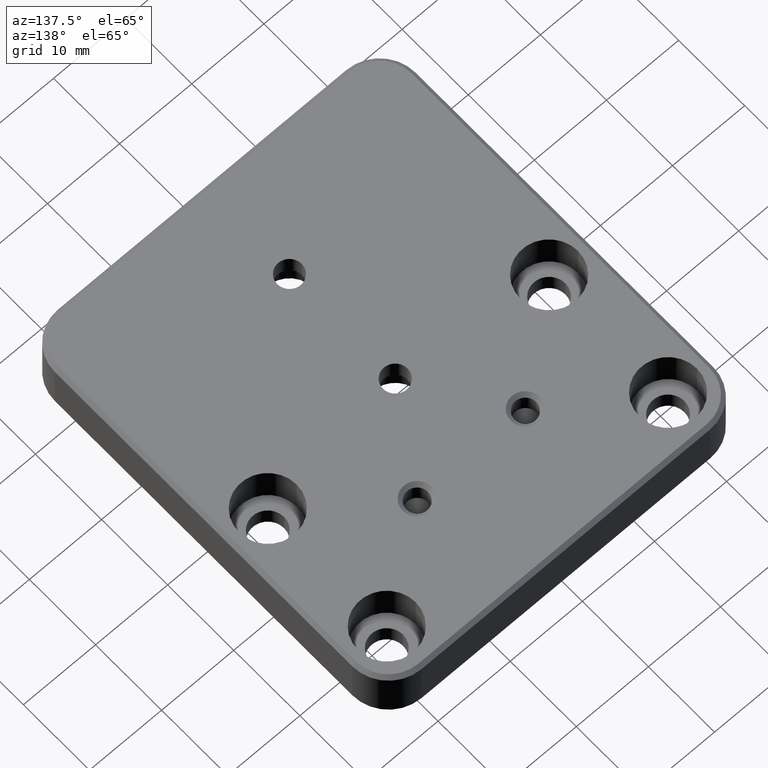
[diagram: clean part render]
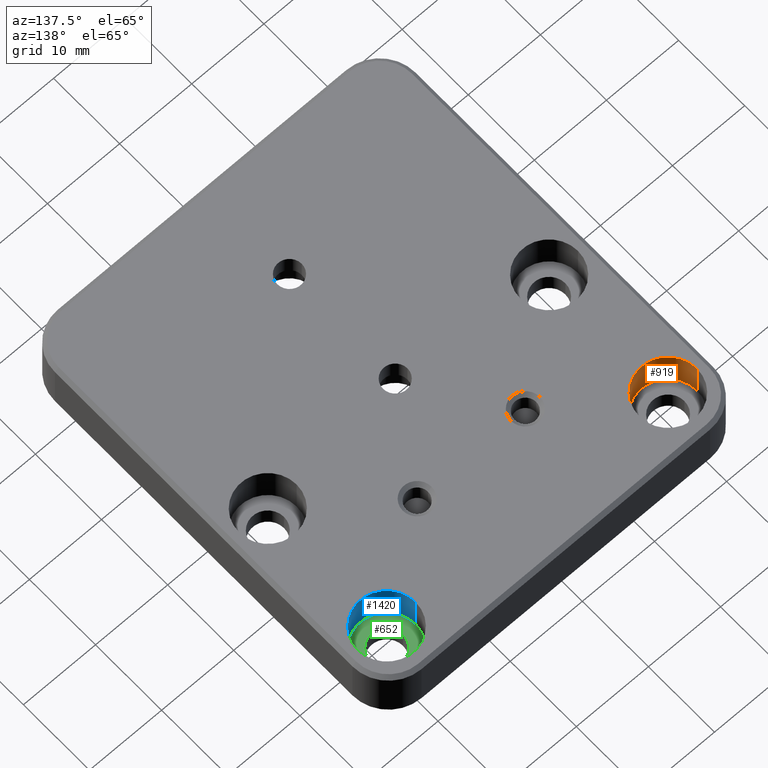
[diagram: same view with three faces highlighted in distinct colors, each labeled with its STEP entity id]
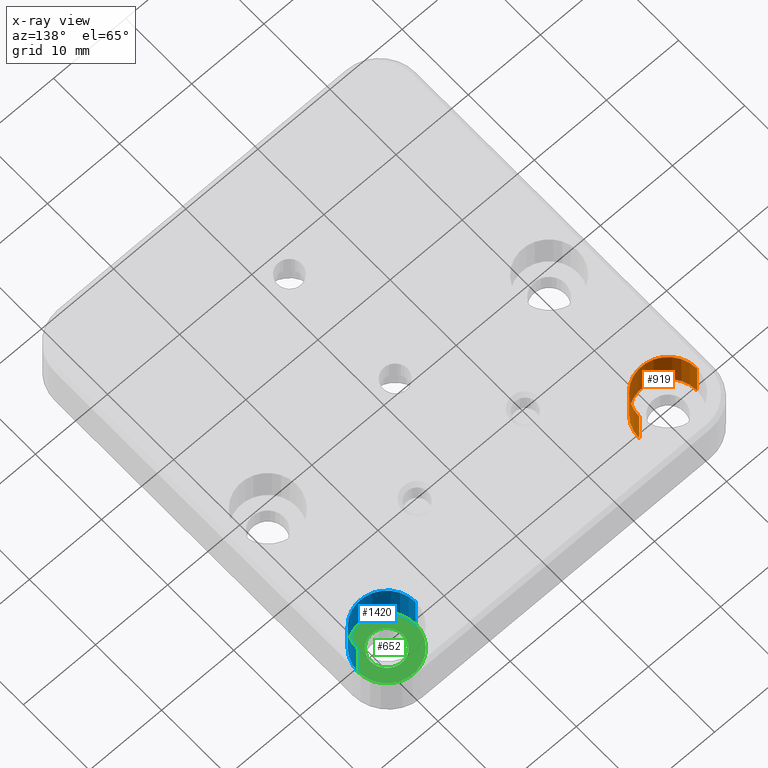
[diagram: x-ray of the same camera — body ghosted, the three highlighted faces saturated]
A machine part, auxiliary view with three faces highlighted in distinct colors.
The next image is the same camera in x-ray (body ghosted, the three faces saturated) — at least one of them is partly hidden behind the body in this view.
Their STEP definitions:

[orange] entity #919 — the highlighted cylindrical surface (partial cylindrical patch) has radius 4 mm, axis along (-0, -0, 1).
#76 = ORIENTED_EDGE ( 'NONE', *, *, #526, .F. ) ;
#85 = CIRCLE ( 'NONE', #198, 4.000000000000000000 ) ;
#88 = FACE_OUTER_BOUND ( 'NONE', #1088, .T. ) ;
#197 = CARTESIAN_POINT ( 'NONE',  ( -15.49999999999999645, 21.70000000000000639, 8.000000000000000000 ) ) ;
#198 = AXIS2_PLACEMENT_3D ( 'NONE', #1405, #2111, #232 ) ;
#232 = DIRECTION ( 'NONE',  ( 1.000000000000000000, 0.0000000000000000000, 0.0000000000000000000 ) ) ;
#526 = EDGE_CURVE ( 'NONE', #721, #1560, #1279, .T. ) ;
#572 = CARTESIAN_POINT ( 'NONE',  ( -23.49999999999999645, 21.70000000000000639, 8.000000000000000000 ) ) ;
#578 = DIRECTION ( 'NONE',  ( -0.0000000000000000000, -0.0000000000000000000, 1.000000000000000000 ) ) ;
#647 = VECTOR ( 'NONE', #1322, 1000.000000000000000 ) ;
#721 = VERTEX_POINT ( 'NONE', #1682 ) ;
#723 = CARTESIAN_POINT ( 'NONE',  ( -23.49999999999999645, 21.70000000000000639, 8.000000000000000000 ) ) ;
#740 = VERTEX_POINT ( 'NONE', #723 ) ;
#774 = DIRECTION ( 'NONE',  ( 1.000000000000000000, 0.0000000000000000000, 0.0000000000000000000 ) ) ;
#867 = CIRCLE ( 'NONE', #1978, 4.000000000000000000 ) ;
#910 = CARTESIAN_POINT ( 'NONE',  ( -19.49999999999999645, 21.70000000000000639, 2.700000000000000178 ) ) ;
#911 = VERTEX_POINT ( 'NONE', #1649 ) ;
#919 = ADVANCED_FACE ( 'NONE', ( #88 ), #1631, .F. ) ;
#1088 = EDGE_LOOP ( 'NONE', ( #1435, #1712, #1450, #76 ) ) ;
#1117 = DIRECTION ( 'NONE',  ( -0.0000000000000000000, -0.0000000000000000000, 1.000000000000000000 ) ) ;
#1279 = LINE ( 'NONE', #1302, #647 ) ;
#1302 = CARTESIAN_POINT ( 'NONE',  ( -15.49999999999999645, 21.70000000000000639, 8.000000000000000000 ) ) ;
#1322 = DIRECTION ( 'NONE',  ( -0.0000000000000000000, -0.0000000000000000000, 1.000000000000000000 ) ) ;
#1340 = EDGE_CURVE ( 'NONE', #911, #740, #2101, .T. ) ;
#1405 = CARTESIAN_POINT ( 'NONE',  ( -19.49999999999999645, 21.70000000000000639, 8.000000000000000000 ) ) ;
#1435 = ORIENTED_EDGE ( 'NONE', *, *, #2104, .F. ) ;
#1450 = ORIENTED_EDGE ( 'NONE', *, *, #1699, .T. ) ;
#1560 = VERTEX_POINT ( 'NONE', #197 ) ;
#1606 = DIRECTION ( 'NONE',  ( 1.000000000000000000, 0.0000000000000000000, 0.0000000000000000000 ) ) ;
#1631 = CYLINDRICAL_SURFACE ( 'NONE', #2038, 4.000000000000000000 ) ;
#1640 = CARTESIAN_POINT ( 'NONE',  ( -19.49999999999999645, 21.70000000000000639, 8.000000000000000000 ) ) ;
#1649 = CARTESIAN_POINT ( 'NONE',  ( -23.49999999999999645, 21.70000000000000639, 2.700000000000000178 ) ) ;
#1682 = CARTESIAN_POINT ( 'NONE',  ( -15.49999999999999645, 21.70000000000000639, 2.700000000000000178 ) ) ;
#1699 = EDGE_CURVE ( 'NONE', #740, #1560, #85, .T. ) ;
#1712 = ORIENTED_EDGE ( 'NONE', *, *, #1340, .T. ) ;
#1901 = VECTOR ( 'NONE', #1117, 1000.000000000000000 ) ;
#1978 = AXIS2_PLACEMENT_3D ( 'NONE', #910, #578, #1606 ) ;
#2038 = AXIS2_PLACEMENT_3D ( 'NONE', #1640, #2136, #774 ) ;
#2101 = LINE ( 'NONE', #572, #1901 ) ;
#2104 = EDGE_CURVE ( 'NONE', #911, #721, #867, .T. ) ;
#2111 = DIRECTION ( 'NONE',  ( -0.0000000000000000000, -0.0000000000000000000, 1.000000000000000000 ) ) ;
#2136 = DIRECTION ( 'NONE',  ( -0.0000000000000000000, -0.0000000000000000000, 1.000000000000000000 ) ) ;

[blue] entity #1420 — the highlighted cylindrical surface (partial cylindrical patch) has radius 4 mm, axis along (-0, -0, 1).
#117 = EDGE_CURVE ( 'NONE', #940, #1062, #1968, .T. ) ;
#133 = CARTESIAN_POINT ( 'NONE',  ( 23.49999999999999645, 21.70000000000000995, 8.000000000000000000 ) ) ;
#224 = AXIS2_PLACEMENT_3D ( 'NONE', #1427, #1774, #1588 ) ;
#334 = EDGE_CURVE ( 'NONE', #1062, #1554, #1787, .T. ) ;
#439 = DIRECTION ( 'NONE',  ( -0.0000000000000000000, -0.0000000000000000000, 1.000000000000000000 ) ) ;
#493 = CARTESIAN_POINT ( 'NONE',  ( 19.49999999999999645, 21.70000000000000995, 8.000000000000000000 ) ) ;
#519 = VERTEX_POINT ( 'NONE', #612 ) ;
#612 = CARTESIAN_POINT ( 'NONE',  ( 23.49999999999999645, 21.70000000000000995, 2.700000000000000178 ) ) ;
#687 = ORIENTED_EDGE ( 'NONE', *, *, #117, .T. ) ;
#813 = CARTESIAN_POINT ( 'NONE',  ( 19.49999999999999645, 21.70000000000000995, 2.700000000000000178 ) ) ;
#940 = VERTEX_POINT ( 'NONE', #973 ) ;
#973 = CARTESIAN_POINT ( 'NONE',  ( 15.49999999999999645, 21.70000000000000995, 2.700000000000000178 ) ) ;
#981 = CARTESIAN_POINT ( 'NONE',  ( 15.49999999999999645, 21.70000000000000995, 8.000000000000000000 ) ) ;
#1000 = DIRECTION ( 'NONE',  ( -0.0000000000000000000, -0.0000000000000000000, 1.000000000000000000 ) ) ;
#1021 = CARTESIAN_POINT ( 'NONE',  ( 15.49999999999999645, 21.70000000000000995, 8.000000000000000000 ) ) ;
#1048 = EDGE_CURVE ( 'NONE', #519, #1554, #1139, .T. ) ;
#1062 = VERTEX_POINT ( 'NONE', #1021 ) ;
#1139 = LINE ( 'NONE', #133, #1615 ) ;
#1194 = DIRECTION ( 'NONE',  ( -0.0000000000000000000, -0.0000000000000000000, 1.000000000000000000 ) ) ;
#1219 = ORIENTED_EDGE ( 'NONE', *, *, #1412, .F. ) ;
#1227 = CARTESIAN_POINT ( 'NONE',  ( 23.49999999999999645, 21.70000000000000995, 8.000000000000000000 ) ) ;
#1228 = EDGE_LOOP ( 'NONE', ( #1219, #687, #1345, #1616 ) ) ;
#1305 = DIRECTION ( 'NONE',  ( -0.0000000000000000000, -0.0000000000000000000, 1.000000000000000000 ) ) ;
#1339 = DIRECTION ( 'NONE',  ( 1.000000000000000000, 0.0000000000000000000, 0.0000000000000000000 ) ) ;
#1345 = ORIENTED_EDGE ( 'NONE', *, *, #334, .T. ) ;
#1362 = AXIS2_PLACEMENT_3D ( 'NONE', #493, #1000, #1820 ) ;
#1412 = EDGE_CURVE ( 'NONE', #940, #519, #1974, .T. ) ;
#1420 = ADVANCED_FACE ( 'NONE', ( #1846 ), #1855, .F. ) ;
#1427 = CARTESIAN_POINT ( 'NONE',  ( 19.49999999999999645, 21.70000000000000995, 8.000000000000000000 ) ) ;
#1500 = VECTOR ( 'NONE', #439, 1000.000000000000000 ) ;
#1554 = VERTEX_POINT ( 'NONE', #1227 ) ;
#1588 = DIRECTION ( 'NONE',  ( 1.000000000000000000, 0.0000000000000000000, 0.0000000000000000000 ) ) ;
#1615 = VECTOR ( 'NONE', #1194, 1000.000000000000000 ) ;
#1616 = ORIENTED_EDGE ( 'NONE', *, *, #1048, .F. ) ;
#1774 = DIRECTION ( 'NONE',  ( -0.0000000000000000000, -0.0000000000000000000, 1.000000000000000000 ) ) ;
#1787 = CIRCLE ( 'NONE', #224, 4.000000000000000000 ) ;
#1820 = DIRECTION ( 'NONE',  ( 1.000000000000000000, 0.0000000000000000000, 0.0000000000000000000 ) ) ;
#1846 = FACE_OUTER_BOUND ( 'NONE', #1228, .T. ) ;
#1855 = CYLINDRICAL_SURFACE ( 'NONE', #1362, 4.000000000000000000 ) ;
#1968 = LINE ( 'NONE', #981, #1500 ) ;
#1974 = CIRCLE ( 'NONE', #2181, 4.000000000000000000 ) ;
#2181 = AXIS2_PLACEMENT_3D ( 'NONE', #813, #1305, #1339 ) ;

[green] entity #652 — the highlighted planar face has unit normal (0, 0, -1).
#97 = EDGE_CURVE ( 'NONE', #1670, #326, #430, .T. ) ;
#135 = EDGE_CURVE ( 'NONE', #326, #1670, #1892, .T. ) ;
#167 = DIRECTION ( 'NONE',  ( 0.0000000000000000000, 0.0000000000000000000, -1.000000000000000000 ) ) ;
#266 = DIRECTION ( 'NONE',  ( -0.0000000000000000000, -0.0000000000000000000, 1.000000000000000000 ) ) ;
#326 = VERTEX_POINT ( 'NONE', #1573 ) ;
#337 = FACE_OUTER_BOUND ( 'NONE', #817, .T. ) ;
#430 = CIRCLE ( 'NONE', #608, 2.249999999999998668 ) ;
#519 = VERTEX_POINT ( 'NONE', #612 ) ;
#608 = AXIS2_PLACEMENT_3D ( 'NONE', #1296, #1511, #1983 ) ;
#612 = CARTESIAN_POINT ( 'NONE',  ( 23.49999999999999645, 21.70000000000000995, 2.700000000000000178 ) ) ;
#652 = ADVANCED_FACE ( 'NONE', ( #2027, #337 ), #1883, .F. ) ;
#670 = EDGE_LOOP ( 'NONE', ( #2103, #1004 ) ) ;
#746 = ORIENTED_EDGE ( 'NONE', *, *, #1412, .T. ) ;
#813 = CARTESIAN_POINT ( 'NONE',  ( 19.49999999999999645, 21.70000000000000995, 2.700000000000000178 ) ) ;
#817 = EDGE_LOOP ( 'NONE', ( #1059, #746 ) ) ;
#940 = VERTEX_POINT ( 'NONE', #973 ) ;
#973 = CARTESIAN_POINT ( 'NONE',  ( 15.49999999999999645, 21.70000000000000995, 2.700000000000000178 ) ) ;
#1004 = ORIENTED_EDGE ( 'NONE', *, *, #97, .F. ) ;
#1059 = ORIENTED_EDGE ( 'NONE', *, *, #1214, .T. ) ;
#1068 = DIRECTION ( 'NONE',  ( 1.000000000000000000, 0.0000000000000000000, 0.0000000000000000000 ) ) ;
#1137 = AXIS2_PLACEMENT_3D ( 'NONE', #1834, #1327, #1665 ) ;
#1181 = CIRCLE ( 'NONE', #2116, 4.000000000000000000 ) ;
#1214 = EDGE_CURVE ( 'NONE', #519, #940, #1181, .T. ) ;
#1250 = AXIS2_PLACEMENT_3D ( 'NONE', #2061, #167, #1518 ) ;
#1296 = CARTESIAN_POINT ( 'NONE',  ( 19.49999999999999645, 21.70000000000000995, 2.700000000000000178 ) ) ;
#1305 = DIRECTION ( 'NONE',  ( -0.0000000000000000000, -0.0000000000000000000, 1.000000000000000000 ) ) ;
#1327 = DIRECTION ( 'NONE',  ( -0.0000000000000000000, -0.0000000000000000000, 1.000000000000000000 ) ) ;
#1339 = DIRECTION ( 'NONE',  ( 1.000000000000000000, 0.0000000000000000000, 0.0000000000000000000 ) ) ;
#1412 = EDGE_CURVE ( 'NONE', #940, #519, #1974, .T. ) ;
#1511 = DIRECTION ( 'NONE',  ( -0.0000000000000000000, -0.0000000000000000000, 1.000000000000000000 ) ) ;
#1518 = DIRECTION ( 'NONE',  ( -1.000000000000000000, 0.0000000000000000000, -0.0000000000000000000 ) ) ;
#1573 = CARTESIAN_POINT ( 'NONE',  ( 21.74999999999999645, 21.70000000000000995, 2.700000000000000178 ) ) ;
#1592 = CARTESIAN_POINT ( 'NONE',  ( 19.49999999999999645, 21.70000000000000995, 2.700000000000000178 ) ) ;
#1665 = DIRECTION ( 'NONE',  ( 1.000000000000000000, 0.0000000000000000000, 0.0000000000000000000 ) ) ;
#1670 = VERTEX_POINT ( 'NONE', #1775 ) ;
#1775 = CARTESIAN_POINT ( 'NONE',  ( 17.24999999999999645, 21.70000000000000995, 2.700000000000000178 ) ) ;
#1834 = CARTESIAN_POINT ( 'NONE',  ( 19.49999999999999645, 21.70000000000000995, 2.700000000000000178 ) ) ;
#1883 = PLANE ( 'NONE',  #1250 ) ;
#1892 = CIRCLE ( 'NONE', #1137, 2.249999999999998668 ) ;
#1974 = CIRCLE ( 'NONE', #2181, 4.000000000000000000 ) ;
#1983 = DIRECTION ( 'NONE',  ( 1.000000000000000000, 0.0000000000000000000, 0.0000000000000000000 ) ) ;
#2027 = FACE_BOUND ( 'NONE', #670, .T. ) ;
#2061 = CARTESIAN_POINT ( 'NONE',  ( 21.74999999999999645, 21.70000000000000995, 2.700000000000000178 ) ) ;
#2103 = ORIENTED_EDGE ( 'NONE', *, *, #135, .F. ) ;
#2116 = AXIS2_PLACEMENT_3D ( 'NONE', #1592, #266, #1068 ) ;
#2181 = AXIS2_PLACEMENT_3D ( 'NONE', #813, #1305, #1339 ) ;